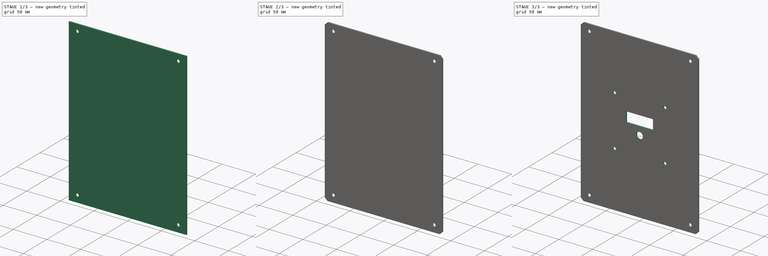
[diagram: build sequence overview — one tinted view per stage of 3, left to right]
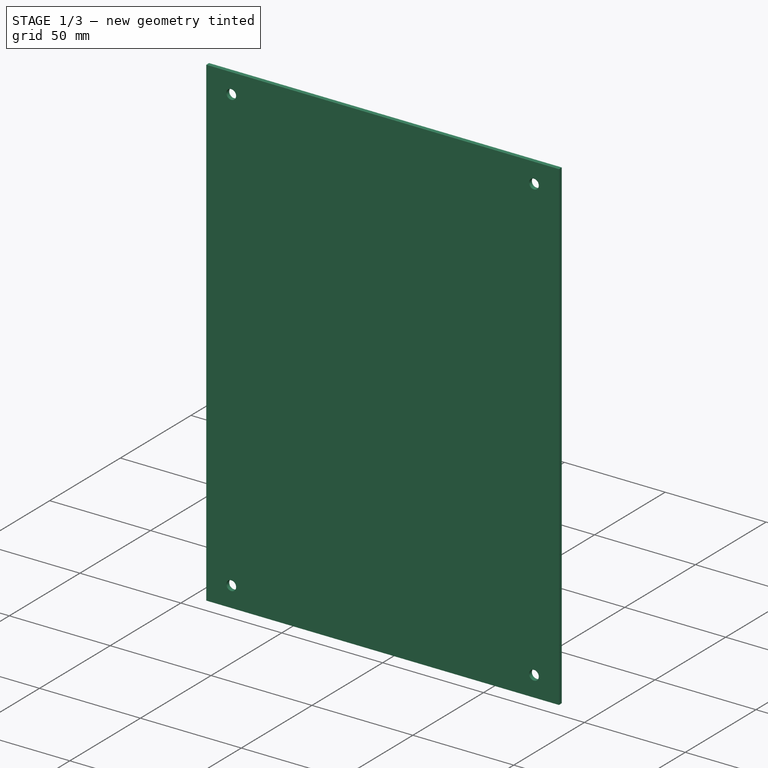
[diagram: stage 1 of 3 — iso view after this stage's code; geometry added in this stage tinted green]
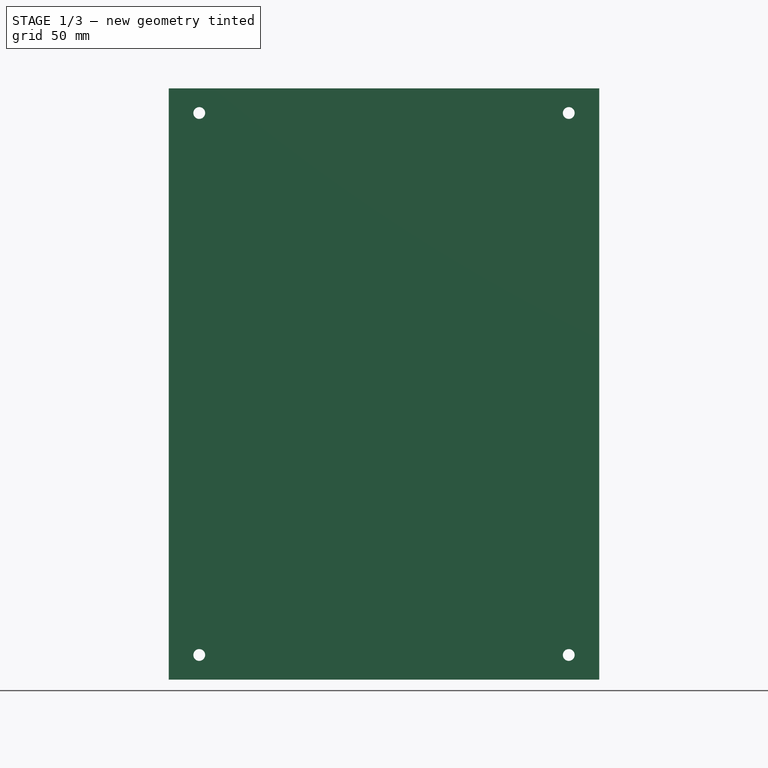
[diagram: stage 1 of 3 — front view after this stage's code; geometry added in this stage tinted green]
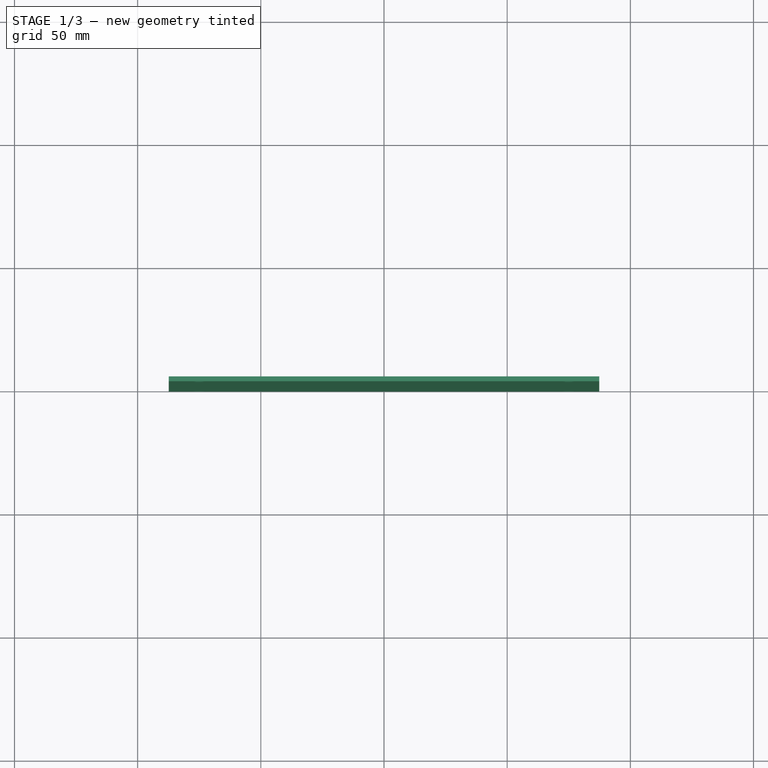
[diagram: stage 1 of 3 — top view after this stage's code; geometry added in this stage tinted green]
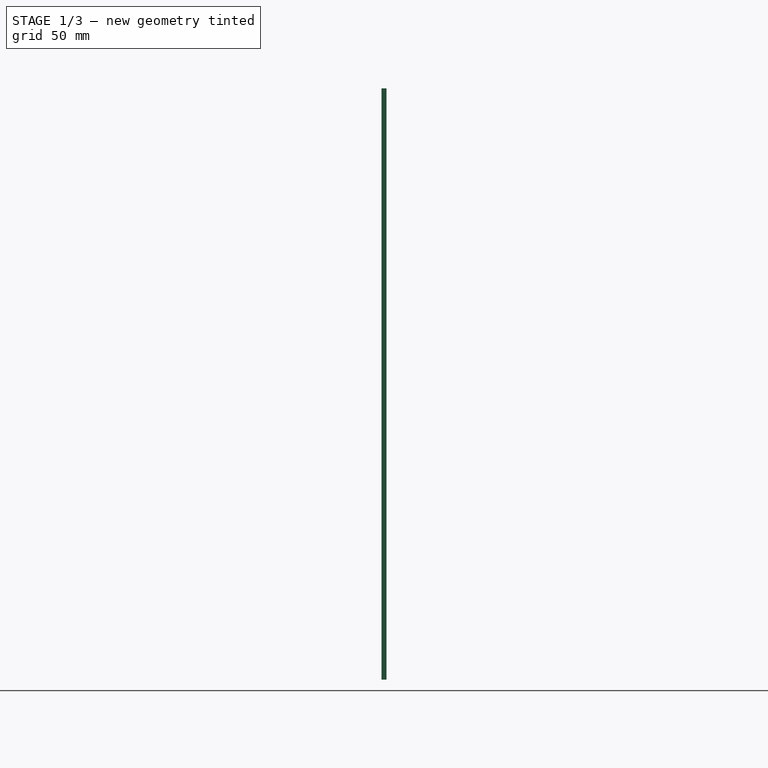
[diagram: stage 1 of 3 — right view after this stage's code; geometry added in this stage tinted green]
FCSTD DOCUMENT  (FreeCAD 1.0R39109 (Git))
Label: OCT-LFPNL-FA
License: All rights reserved
LicenseURL: https://en.wikipedia.org/wiki/All_rights_reserved
objects: Sketcher::SketchObject×4, PartDesign::Hole×2, App::Link×1, PartDesign::Pad×1, PartDesign::Chamfer×1, Spreadsheet::Sheet×1, PartDesign::Pocket×1, PartDesign::Body×1
note: 24 computed .brp shape members not serialized (recipe doc carries the construction recipe); baked Part::Feature solids carry a one-line shape summary decoded from their .brp
EXTERNAL_REF file=../master.FCStd obj=Spreadsheet

FEATURE [App::Link] Link  label="dims"
  LinkedObject = -> <external ../master.FCStd>#Spreadsheet
FEATURE [Sketcher::SketchObject] Sketch
  ArcFitTolerance = 1e-06
  AttachmentSupport = -> [XZ_Plane]
  FullyConstrained = true
  MakeInternals = false
  MapMode = 5
  Placement = pos=(0,0,0) rot=(1,0,0;1.5708rad)
  expr: Constraints[10] = <<dims>>.lcHeight + 40
  expr: Constraints[11] = <<dims>>.opFurnace
  sketch-geometry (5):
    g0: LineSegment StartX=87.3991 StartY=-120 StartZ=0 EndX=87.3991 EndY=120 EndZ=0
    g1: LineSegment StartX=87.3991 StartY=120 StartZ=0 EndX=-87.3991 EndY=120 EndZ=0
    g2: LineSegment StartX=-87.3991 StartY=120 StartZ=0 EndX=-87.3991 EndY=-120 EndZ=0
    g3: LineSegment StartX=-87.3991 StartY=-120 StartZ=0 EndX=87.3991 EndY=-120 EndZ=0
    g4: GeomPoint [constr] X=0 Y=0 Z=0
  constraints (12):
    c: Coincident(g0,g1)
    c: Coincident(g1,g2)
    c: Coincident(g2,g3)
    c: Coincident(g3,g0)
    c: Vertical(g0)
    c: Vertical(g2)
    c: Horizontal(g1)
    c: Horizontal(g3)
    c: Symmetric(g2,g0,g4)
    c: Coincident(g4,g-1)
    c: DistanceY(g2,g2) = 240
    c: DistanceX(g1,g1) = 174.798
FEATURE [PartDesign::Pad] Pad
  Direction = (0,-1,2e-16)
  Length = 2
  Length2 = 10
  Placement = pos=(0,0,0) rot=(1,0,0;1.5708rad)
  Profile = -> Sketch
  ReferenceAxis = -> Sketch [N_Axis]
  Refine = true
  Reversed = true
  Suppressed = false
  Type = 0
  expr: Length = <<dims>>.tLowerPanel
FEATURE [Sketcher::SketchObject] Sketch001
  ArcFitTolerance = 1e-06
  AttachmentSupport = -> [XZ_Plane]
  FullyConstrained = true
  MakeInternals = false
  MapMode = 5
  Placement = pos=(0,0,0) rot=(1,0,0;1.5708rad)
  expr: Constraints[19] = <<dims>>.lcHeight + 40 - 20
  sketch-geometry (9):
    g0: Circle CenterX=-75 CenterY=110 CenterZ=0 NormalX=0 NormalY=0 NormalZ=1 AngleXU=0 Radius=2
    g1: Circle CenterX=75 CenterY=110 CenterZ=0 NormalX=0 NormalY=0 NormalZ=1 AngleXU=0 Radius=2
    g2: Circle CenterX=75 CenterY=-110 CenterZ=0 NormalX=0 NormalY=0 NormalZ=1 AngleXU=0 Radius=2
    g3: Circle CenterX=-75 CenterY=-110 CenterZ=0 NormalX=0 NormalY=0 NormalZ=1 AngleXU=0 Radius=2
    g4: LineSegment [constr] StartX=-75 StartY=-110 StartZ=0 EndX=75 EndY=-110 EndZ=0
    g5: LineSegment [constr] StartX=75 StartY=-110 StartZ=0 EndX=75 EndY=110 EndZ=0
    g6: LineSegment [constr] StartX=75 StartY=110 StartZ=0 EndX=-75 EndY=110 EndZ=0
    g7: LineSegment [constr] StartX=-75 StartY=110 StartZ=0 EndX=-75 EndY=-110 EndZ=0
    g8: GeomPoint [constr] X=0 Y=0 Z=0
  constraints (20):
    c: Coincident(g4,g5)
    c: Coincident(g5,g6)
    c: Coincident(g6,g7)
    c: Coincident(g7,g4)
    c: Horizontal(g4)
    c: Horizontal(g6)
    c: Vertical(g5)
    c: Vertical(g7)
    c: Symmetric(g6,g4,g8)
    c: Coincident(g8,g-1)
    c: Coincident(g5,g1)
    c: Coincident(g0,g6)
    c: Equal(g0,g1)
    c: Equal(g1,g2)
    c: Equal(g2,g3)
    c: Coincident(g2,g4)
    c: Coincident(g3,g4)
    c: Diameter(g1) = 4
    c: DistanceX(g6,g6) = 150
    c: DistanceY(g7,g7) = 220
FEATURE [PartDesign::Hole] Hole  label="panel mount holes"
  BaseFeature = -> Pad
  CustomThreadClearance = 0
  Depth = 25
  DepthType = 0
  Diameter = 4.8
  DrillForDepth = false
  DrillPoint = 1
  DrillPointAngle = 118
  HoleCutCountersinkAngle = 90
  HoleCutCustomValues = false
  HoleCutDepth = 0
  HoleCutDiameter = 6.1
  HoleCutType = 0
  ModelThread = false
  Placement = pos=(0,0,0) rot=(1,0,0;1.5708rad)
  Profile = -> Sketch001
  Refine = true
  Suppressed = false
  Tapered = false
  TaperedAngle = 90
  ThreadClass = 0
  ThreadDepth = 25
  ThreadDepthType = 0
  ThreadDirection = 0
  ThreadFit = 2
  ThreadSize = 11
  ThreadType = 1
  Threaded = false
  UseCustomThreadClearance = false
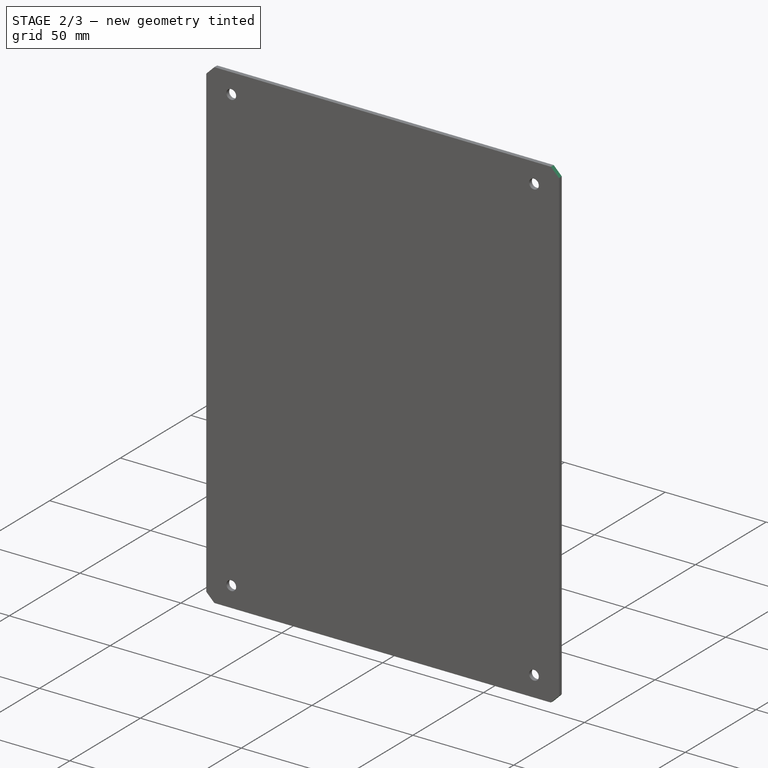
[diagram: stage 2 of 3 — iso view after this stage's code; geometry added in this stage tinted green]
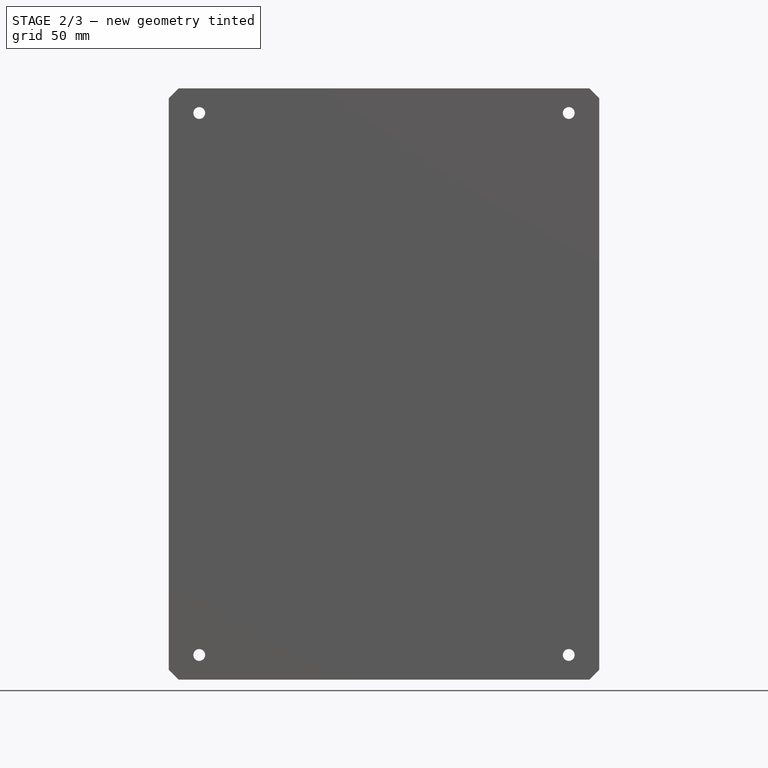
[diagram: stage 2 of 3 — front view after this stage's code; geometry added in this stage tinted green]
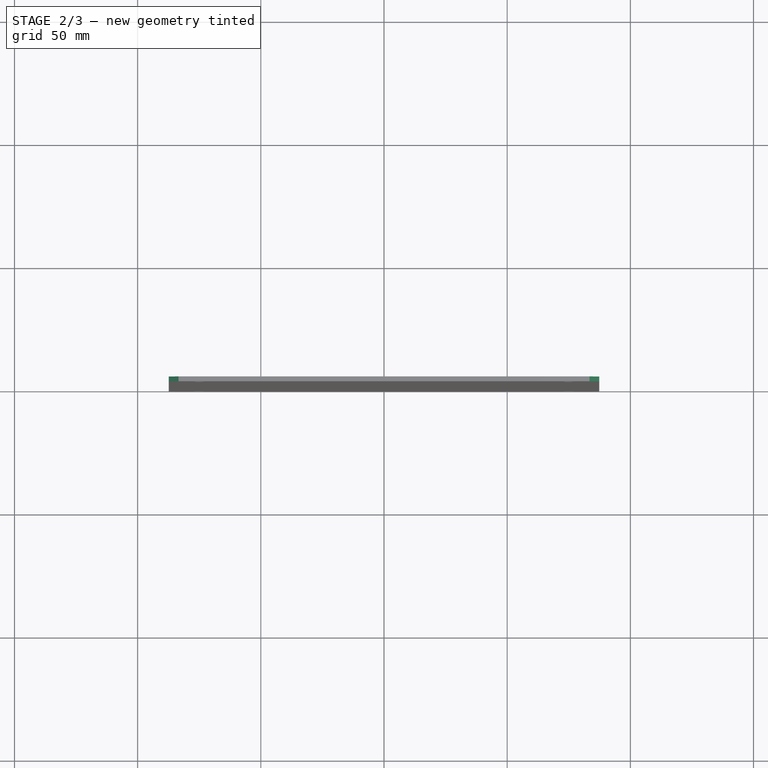
[diagram: stage 2 of 3 — top view after this stage's code; geometry added in this stage tinted green]
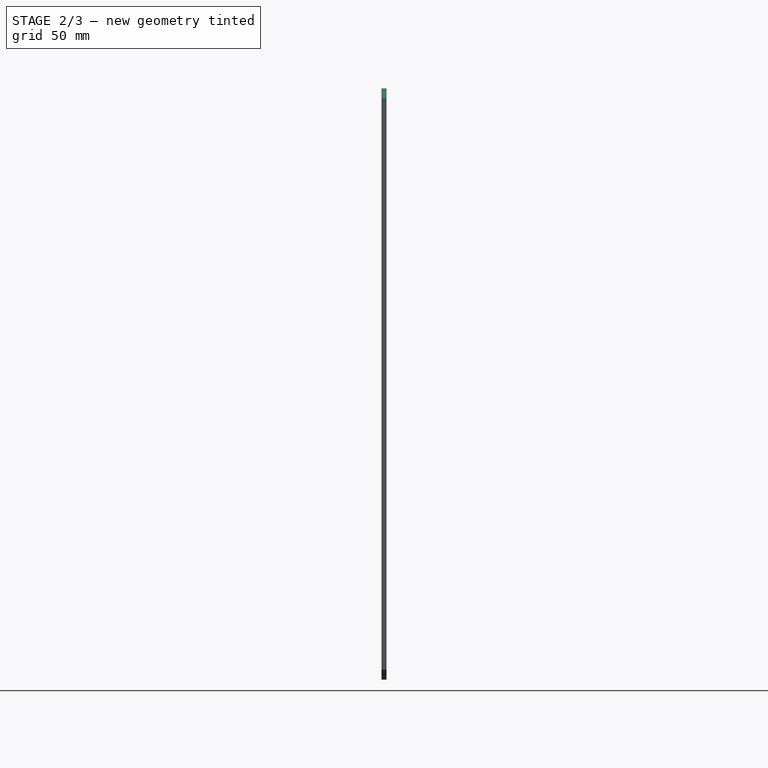
[diagram: stage 2 of 3 — right view after this stage's code; geometry added in this stage tinted green]
FEATURE [PartDesign::Chamfer] Chamfer
  Angle = 45
  Base = -> Hole [Edge8,Edge2,Edge1,Edge5]
  BaseFeature = -> Hole
  ChamferType = 0
  FlipDirection = false
  Placement = pos=(0,0,0) rot=(1,0,0;1.5708rad)
  Refine = true
  Size = 4
  Size2 = 1
  SupportTransform = false
  Suppressed = false
  UseAllEdges = false
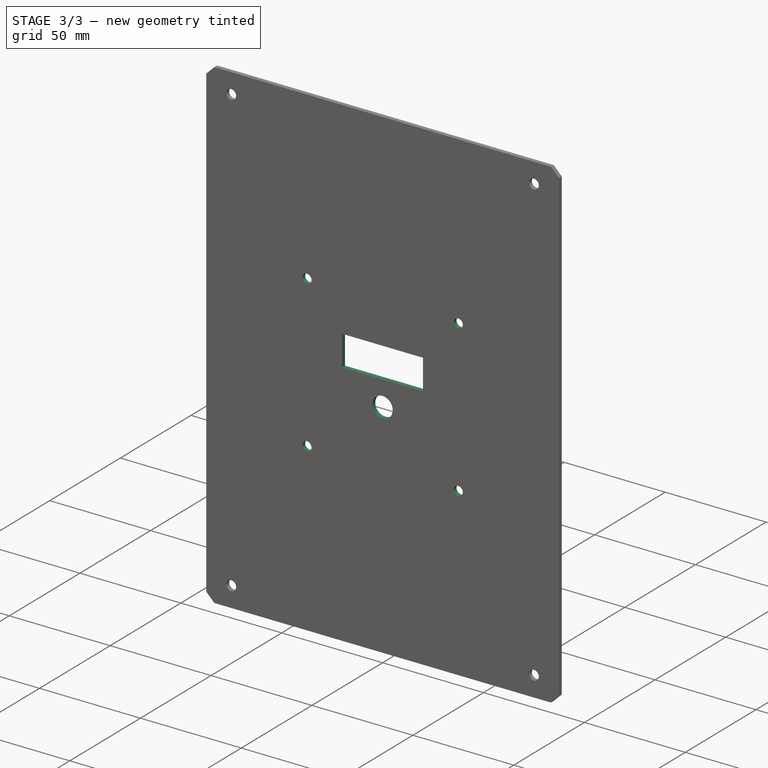
[diagram: stage 3 of 3 — iso view after this stage's code; geometry added in this stage tinted green]
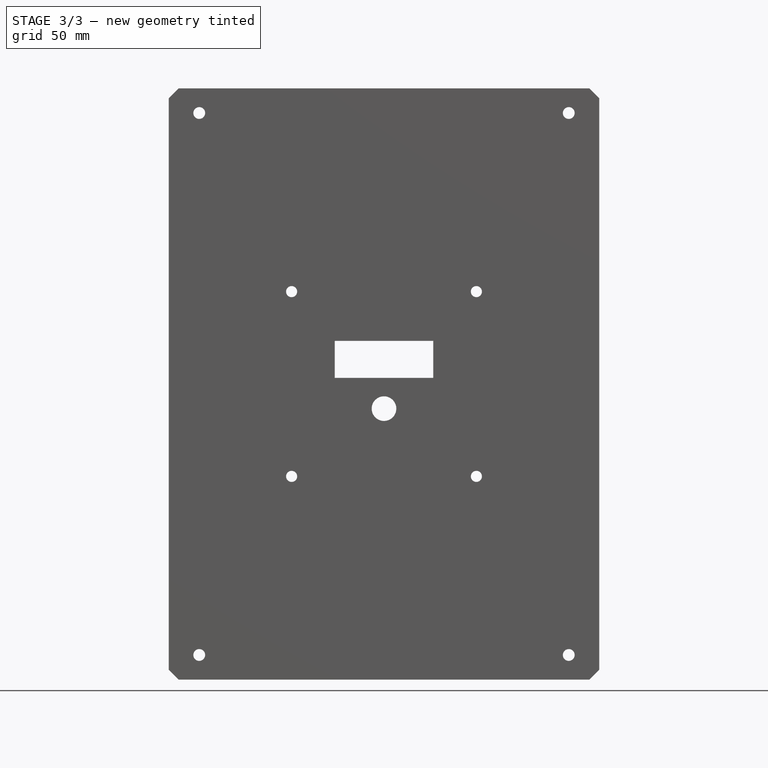
[diagram: stage 3 of 3 — front view after this stage's code; geometry added in this stage tinted green]
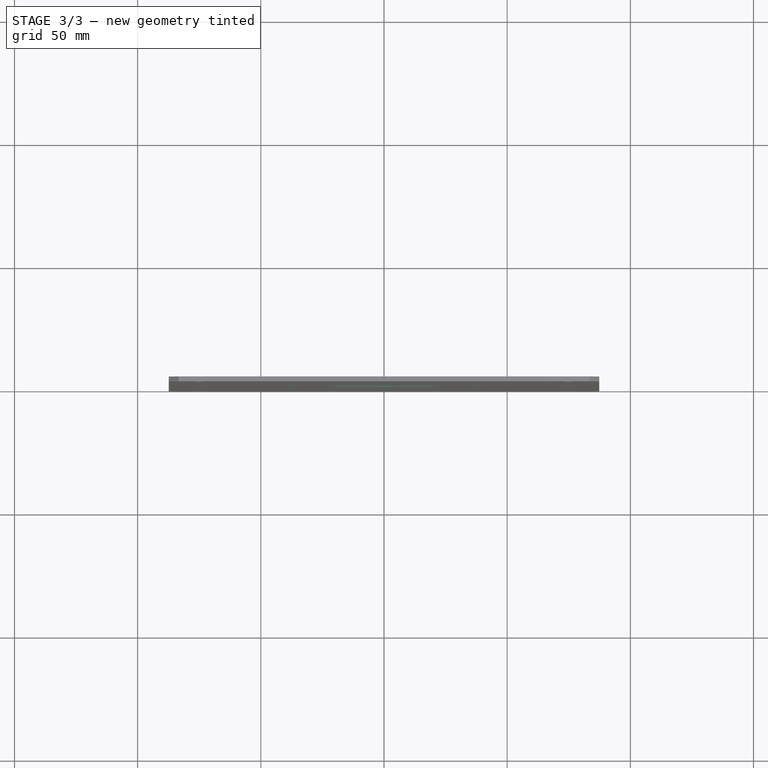
[diagram: stage 3 of 3 — top view after this stage's code; geometry added in this stage tinted green]
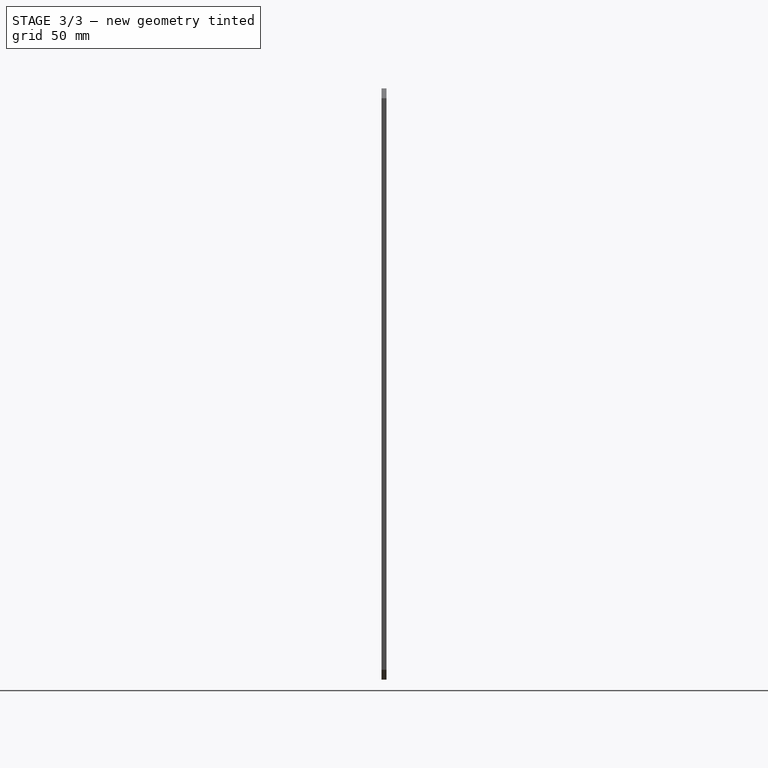
[diagram: stage 3 of 3 — right view after this stage's code; geometry added in this stage tinted green]
FEATURE [Sketcher::SketchObject] Sketch002
  ArcFitTolerance = 1e-06
  AttachmentSupport = -> [XZ_Plane]
  FullyConstrained = true
  MakeInternals = false
  MapMode = 5
  Placement = pos=(0,0,0) rot=(1,0,0;1.5708rad)
  expr: Constraints[10] = <<local>>.MountHoleSpacing
  expr: Constraints[29] = <<local>>.MountHoleDiameter
  expr: Constraints[32] = <<local>>.CentreVertOffset
  sketch-geometry (14):
    g0: LineSegment [constr] StartX=-37.5 StartY=37.5 StartZ=0 EndX=-37.5 EndY=-37.5 EndZ=0
    g1: LineSegment [constr] StartX=-37.5 StartY=-37.5 StartZ=0 EndX=37.5 EndY=-37.5 EndZ=0
    g2: LineSegment [constr] StartX=37.5 StartY=-37.5 StartZ=0 EndX=37.5 EndY=37.5 EndZ=0
    g3: LineSegment [constr] StartX=37.5 StartY=37.5 StartZ=0 EndX=-37.5 EndY=37.5 EndZ=0
    g4: GeomPoint [constr] X=0 Y=0 Z=0
    g5: LineSegment [constr] StartX=-42.5 StartY=-42.5 StartZ=0 EndX=42.5 EndY=-42.5 EndZ=0
    g6: LineSegment [constr] StartX=42.5 StartY=-42.5 StartZ=0 EndX=42.5 EndY=42.5 EndZ=0
    g7: LineSegment [constr] StartX=42.5 StartY=42.5 StartZ=0 EndX=-42.5 EndY=42.5 EndZ=0
    g8: LineSegment [constr] StartX=-42.5 StartY=42.5 StartZ=0 EndX=-42.5 EndY=-42.5 EndZ=0
    g9: GeomPoint [constr] X=0 Y=0 Z=0
    g10: Circle CenterX=-37.5 CenterY=37.5 CenterZ=0 NormalX=0 NormalY=0 NormalZ=1 AngleXU=0 Radius=2
    g11: Circle CenterX=37.5 CenterY=37.5 CenterZ=0 NormalX=0 NormalY=0 NormalZ=1 AngleXU=0 Radius=2
    g12: Circle CenterX=37.5 CenterY=-37.5 CenterZ=0 NormalX=0 NormalY=0 NormalZ=1 AngleXU=0 Radius=2
    g13: Circle CenterX=-37.5 CenterY=-37.5 CenterZ=0 NormalX=0 NormalY=0 NormalZ=1 AngleXU=0 Radius=2
  constraints (33):
    c: Coincident(g0,g1)
    c: Coincident(g1,g2)
    c: Coincident(g2,g3)
    c: Coincident(g3,g0)
    c: Vertical(g0)
    c: Vertical(g2)
    c: Horizontal(g1)
    c: Horizontal(g3)
    c: Symmetric(g2,g0,g4)
    c: PointOnObject(g4,g-2)
    c: DistanceX(g3,g3) = 75
    c: Coincident(g5,g6)
    c: Coincident(g6,g7)
    c: Coincident(g7,g8)
    c: Coincident(g8,g5)
    c: Horizontal(g5)
    c: Horizontal(g7)
    c: Vertical(g6)
    c: Vertical(g8)
    c: Symmetric(g7,g5,g9)
    c: Coincident(g9,g4)
    c: DistanceX(g7,g7) = 85
    c: Coincident(g10,g0)
    c: Coincident(g11,g2)
    c: Coincident(g12,g1)
    c: Coincident(g13,g0)
    c: Equal(g10,g13)
    c: Equal(g13,g12)
    c: Equal(g12,g11)
    c: Diameter(g10) = 4
    c: Equal(g3,g2)
    c: Equal(g6,g7)
    c: DistanceY(g-1,g4) = 0
FEATURE [Spreadsheet::Sheet] Spreadsheet  label="local"
  cells = A1='mount hole diameter; B1(MountHoleDiameter)=4; A2='mount hole spacing; B2(MountHoleSpacing)=75; A3='centre vert offset; B3(CentreVertOffset)=0
FEATURE [PartDesign::Hole] Hole001  label="PCB mount holes"
  BaseFeature = -> Chamfer
  CustomThreadClearance = 0
  Depth = 599.768
  DepthType = 1
  Diameter = 4.5
  DrillForDepth = false
  DrillPoint = 1
  DrillPointAngle = 118
  HoleCutCountersinkAngle = 90
  HoleCutCustomValues = false
  HoleCutDepth = 0
  HoleCutDiameter = 6.1
  HoleCutType = 0
  ModelThread = false
  Placement = pos=(0,0,0) rot=(1,0,0;1.5708rad)
  Profile = -> Sketch002
  Refine = true
  Suppressed = false
  Tapered = false
  TaperedAngle = 90
  ThreadClass = 0
  ThreadDepth = 599.768
  ThreadDepthType = 0
  ThreadDirection = 0
  ThreadFit = 0
  ThreadSize = 11
  ThreadType = 1
  Threaded = false
  UseCustomThreadClearance = false
FEATURE [Sketcher::SketchObject] Sketch003
  ArcFitTolerance = 1e-06
  AttachmentSupport = -> [XZ_Plane]
  FullyConstrained = true
  MakeInternals = false
  MapMode = 5
  Placement = pos=(0,0,0) rot=(1,0,0;1.5708rad)
  expr: Constraints[22] = 80
  expr: Constraints[23] = <<local>>.CentreVertOffset
  sketch-geometry (11):
    g0: LineSegment StartX=-20 StartY=17.5 StartZ=0 EndX=-20 EndY=2.5 EndZ=0
    g1: LineSegment StartX=-20 StartY=2.5 StartZ=0 EndX=20 EndY=2.5 EndZ=0
    g2: LineSegment StartX=20 StartY=2.5 StartZ=0 EndX=20 EndY=17.5 EndZ=0
    g3: LineSegment StartX=20 StartY=17.5 StartZ=0 EndX=-20 EndY=17.5 EndZ=0
    g4: GeomPoint [constr] X=0 Y=10 Z=0
    g5: Circle CenterX=0 CenterY=-10 CenterZ=0 NormalX=0 NormalY=0 NormalZ=1 AngleXU=0 Radius=5
    g6: LineSegment [constr] StartX=-40 StartY=-40 StartZ=0 EndX=40 EndY=-40 EndZ=0
    g7: LineSegment [constr] StartX=40 StartY=-40 StartZ=0 EndX=40 EndY=40 EndZ=0
    g8: LineSegment [constr] StartX=40 StartY=40 StartZ=0 EndX=-40 EndY=40 EndZ=0
    g9: LineSegment [constr] StartX=-40 StartY=40 StartZ=0 EndX=-40 EndY=-40 EndZ=0
    g10: GeomPoint [constr] X=0 Y=0 Z=0
  constraints (29):
    c: Coincident(g0,g1)
    c: Coincident(g1,g2)
    c: Coincident(g2,g3)
    c: Coincident(g3,g0)
    c: Vertical(g0)
    c: Vertical(g2)
    c: Horizontal(g1)
    c: Horizontal(g3)
    c: Symmetric(g2,g0,g4)
    c: PointOnObject(g5,g-2)
    c: PointOnObject(g4,g-2)
    c: Coincident(g6,g7)
    c: Coincident(g7,g8)
    c: Coincident(g8,g9)
    c: Coincident(g9,g6)
    c: Horizontal(g6)
    c: Horizontal(g8)
    c: Vertical(g7)
    c: Vertical(g9)
    c: Symmetric(g8,g6,g10)
    c: PointOnObject(g10,g-2)
    c: Equal(g7,g8)
    c: DistanceX(g8,g8) = 80
    c: DistanceY(g-1,g10) = 0
    c: DistanceY(g5,g10) = 10
    c: Diameter(g5) = 10
    c: DistanceY(g2,g2) = 15
    c: DistanceX(g3,g3) = 40
    c: DistanceY(g10,g4) = 10
FEATURE [PartDesign::Pocket] Pocket
  BaseFeature = -> Hole001
  Direction = (0,1,-2e-16)
  Length = 5
  Length2 = 5
  Placement = pos=(0,0,0) rot=(1,0,0;1.5708rad)
  Profile = -> Sketch003
  ReferenceAxis = -> Sketch003 [N_Axis]
  Refine = true
  Suppressed = false
  Type = 1
FEATURE [PartDesign::Body] Body  label="panel"
  AllowCompound = false
  Group = -> [Sketch,Pad,Sketch001,Hole,Chamfer,Sketch002,Hole001,Sketch003,Pocket]
  Origin = -> Origin
  Tip = -> Pocket
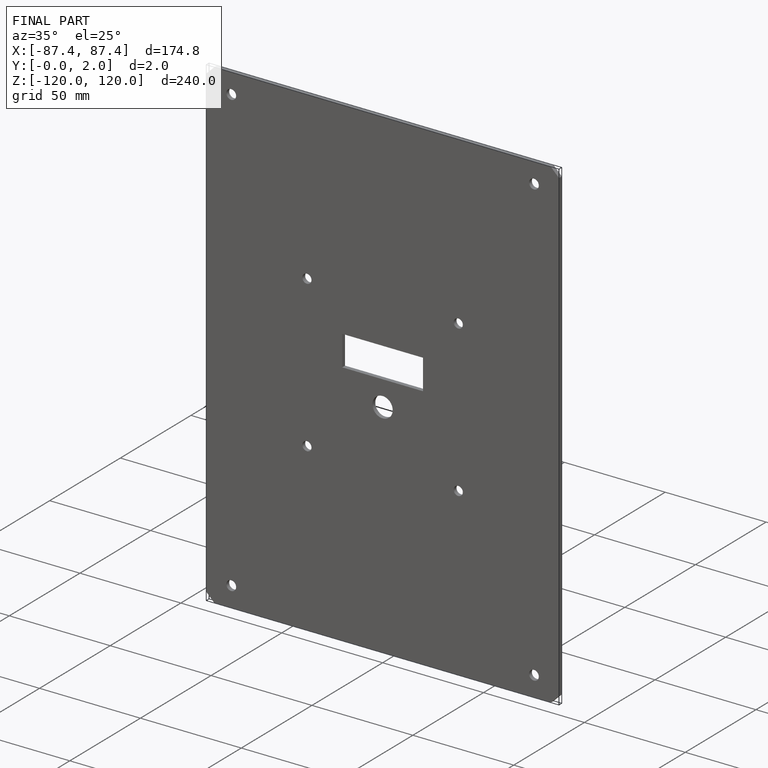
[diagram: finished part — iso view with bounding-box wireframe]
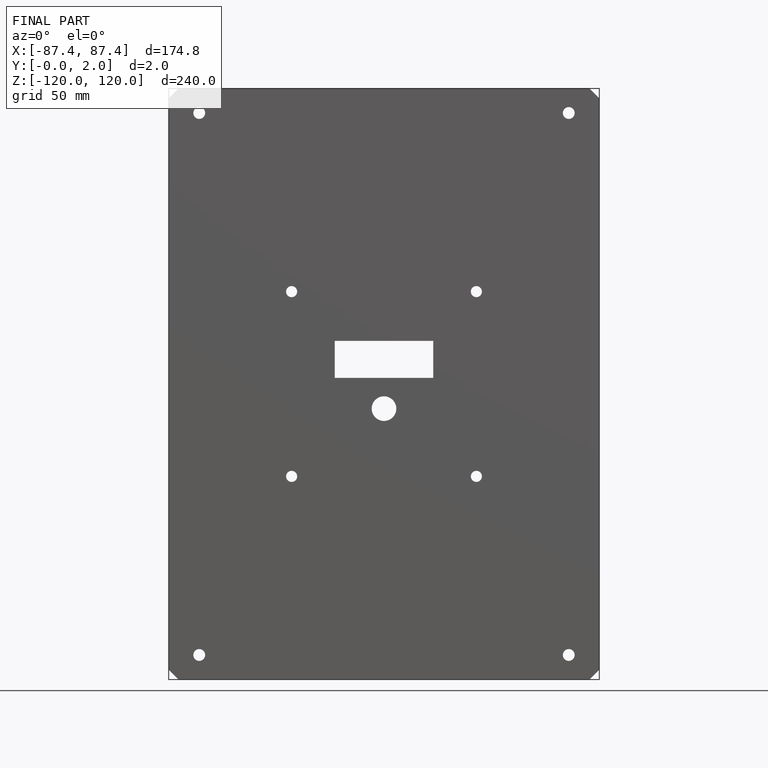
[diagram: finished part — front view with bounding-box wireframe]
